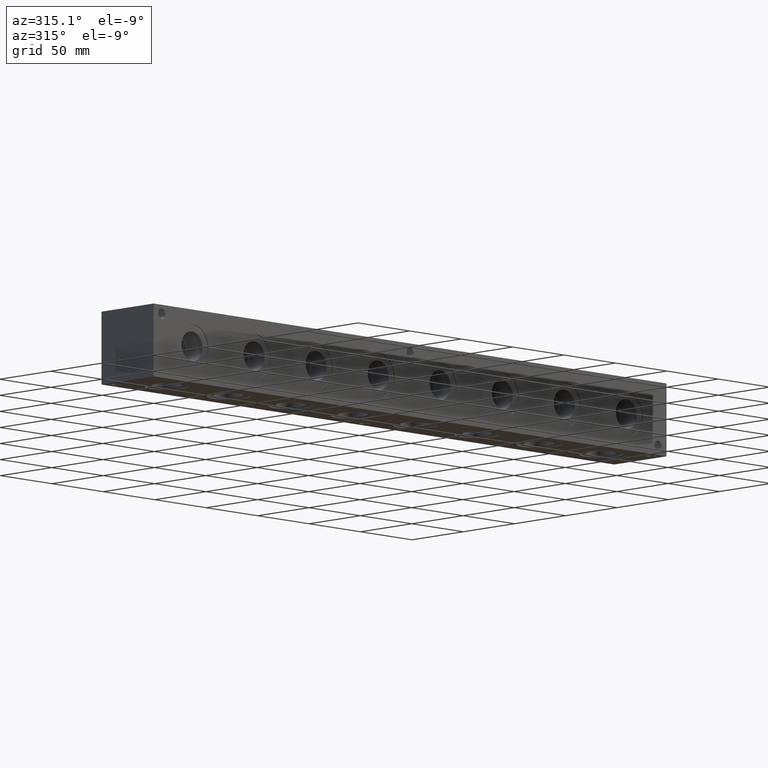
[diagram: clean part render]
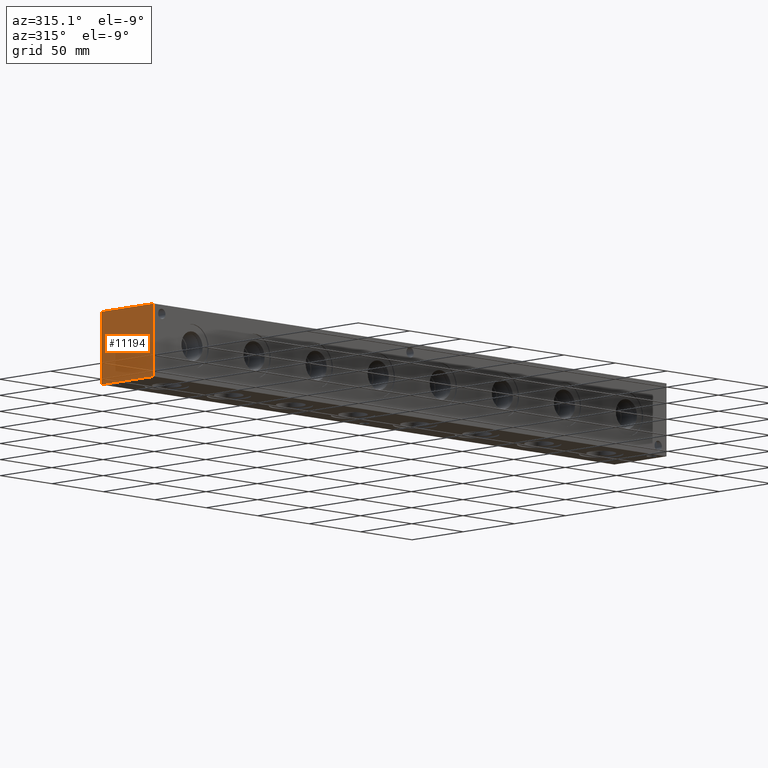
[diagram: same view with one face highlighted and labeled with its STEP entity id]
A machine part, auxiliary view. The second image highlights one B-rep face of the part: STEP entity #11194.
In plain terms, the highlighted planar face has unit normal (-1, 0, 0).
Its self-contained STEP definition (entity closure, byte-faithful):
#1071=PLANE('',#12158);
#1649=FACE_OUTER_BOUND('',#2315,.T.);
#2315=EDGE_LOOP('',(#10138,#10139,#10140,#10141));
#2593=LINE('',#17188,#3406);
#3151=LINE('',#20164,#3964);
#3152=LINE('',#20165,#3965);
#3153=LINE('',#20166,#3966);
#3406=VECTOR('',#12527,10.);
#3964=VECTOR('',#14861,10.);
#3965=VECTOR('',#14862,10.);
#3966=VECTOR('',#14863,10.);
#4586=VERTEX_POINT('',#17181);
#4589=VERTEX_POINT('',#17186);
#5374=VERTEX_POINT('',#20162);
#5375=VERTEX_POINT('',#20163);
#5837=EDGE_CURVE('',#4589,#4586,#2593,.T.);
#6979=EDGE_CURVE('',#5374,#5375,#3151,.T.);
#6980=EDGE_CURVE('',#5375,#4586,#3152,.T.);
#6981=EDGE_CURVE('',#5374,#4589,#3153,.T.);
#10138=ORIENTED_EDGE('',*,*,#6979,.T.);
#10139=ORIENTED_EDGE('',*,*,#6980,.T.);
#10140=ORIENTED_EDGE('',*,*,#5837,.F.);
#10141=ORIENTED_EDGE('',*,*,#6981,.F.);
#11194=ADVANCED_FACE('',(#1649),#1071,.T.);
#12158=AXIS2_PLACEMENT_3D('',#20161,#14859,#14860);
#12527=DIRECTION('',(0.,-1.,0.));
#14859=DIRECTION('center_axis',(-1.,0.,0.));
#14860=DIRECTION('ref_axis',(0.,-1.,0.));
#14861=DIRECTION('',(0.,-1.,0.));
#14862=DIRECTION('',(0.,0.,1.));
#14863=DIRECTION('',(0.,0.,1.));
#17181=CARTESIAN_POINT('',(0.,0.,50.8));
#17186=CARTESIAN_POINT('',(0.,50.8,50.8));
#17188=CARTESIAN_POINT('',(0.,50.8,50.8));
#20161=CARTESIAN_POINT('Origin',(0.,50.8,0.));
#20162=CARTESIAN_POINT('',(0.,50.8,0.));
#20163=CARTESIAN_POINT('',(0.,0.,0.));
#20164=CARTESIAN_POINT('',(0.,50.8,0.));
#20165=CARTESIAN_POINT('',(0.,0.,0.));
#20166=CARTESIAN_POINT('',(0.,50.8,0.));